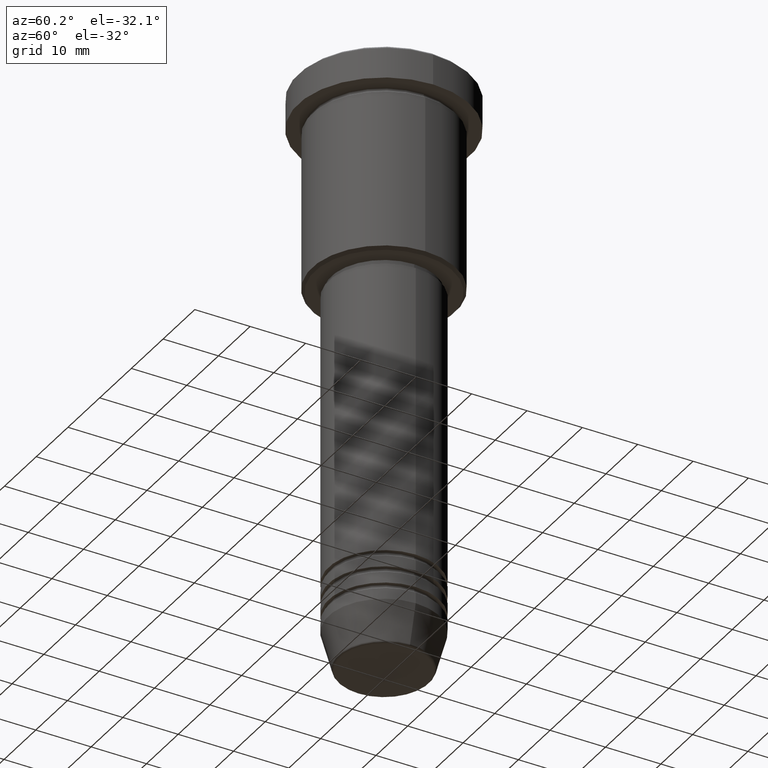
[diagram: clean part render]
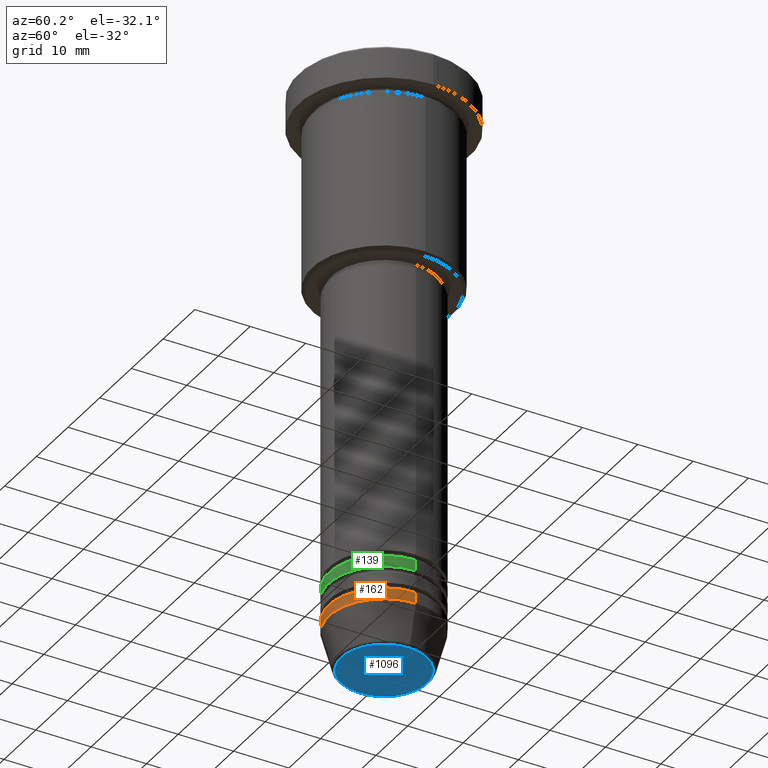
[diagram: same view with three faces highlighted in distinct colors, each labeled with its STEP entity id]
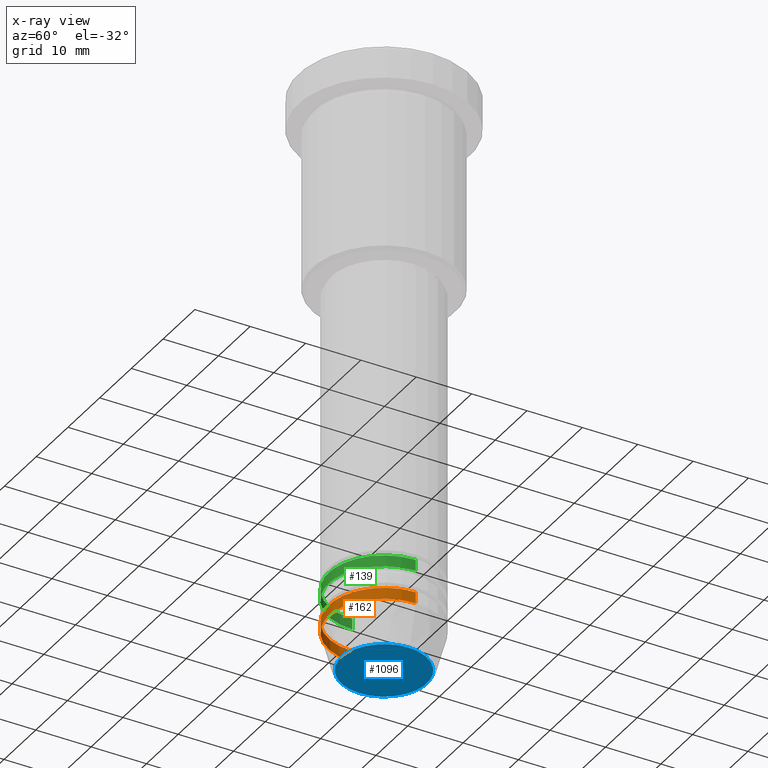
[diagram: x-ray of the same camera — body ghosted, the three highlighted faces saturated]
A machine part, auxiliary view with three faces highlighted in distinct colors.
The next image is the same camera in x-ray (body ghosted, the three faces saturated) — at least one of them is partly hidden behind the body in this view.
Their STEP definitions:

[orange] entity #162 — the highlighted cylindrical surface (partial cylindrical patch) has radius 10 mm, axis along (-0, -0, 1).
#4 = VERTEX_POINT ( 'NONE', #784 ) ;
#26 = AXIS2_PLACEMENT_3D ( 'NONE', #634, #157, #996 ) ;
#37 = LINE ( 'NONE', #405, #396 ) ;
#71 = CARTESIAN_POINT ( 'NONE',  ( 10.00000000000000000, 0.000000000000000000, -99.00000000000000000 ) ) ;
#124 = ORIENTED_EDGE ( 'NONE', *, *, #1069, .T. ) ;
#157 = DIRECTION ( 'NONE',  ( -0.000000000000000000, -0.000000000000000000, 1.000000000000000000 ) ) ;
#162 = ADVANCED_FACE ( 'NONE', ( #627 ), #791, .T. ) ;
#165 = ORIENTED_EDGE ( 'NONE', *, *, #327, .T. ) ;
#176 = AXIS2_PLACEMENT_3D ( 'NONE', #688, #1041, #956 ) ;
#177 = ORIENTED_EDGE ( 'NONE', *, *, #684, .F. ) ;
#199 = VECTOR ( 'NONE', #932, 1000.000000000000000 ) ;
#305 = VERTEX_POINT ( 'NONE', #375 ) ;
#313 = CIRCLE ( 'NONE', #26, 10.00000000000000000 ) ;
#321 = CARTESIAN_POINT ( 'NONE',  ( 0.000000000000000000, 0.000000000000000000, 0.000000000000000000 ) ) ;
#327 = EDGE_CURVE ( 'NONE', #628, #879, #313, .T. ) ;
#375 = CARTESIAN_POINT ( 'NONE',  ( -10.00000000000000000, 1.224646799147353256E-15, -97.00000000000000000 ) ) ;
#396 = VECTOR ( 'NONE', #1127, 1000.000000000000000 ) ;
#405 = CARTESIAN_POINT ( 'NONE',  ( -10.00000000000000000, 1.224646799147353256E-15, 0.000000000000000000 ) ) ;
#434 = AXIS2_PLACEMENT_3D ( 'NONE', #321, #983, #961 ) ;
#627 = FACE_OUTER_BOUND ( 'NONE', #839, .T. ) ;
#628 = VERTEX_POINT ( 'NONE', #965 ) ;
#634 = CARTESIAN_POINT ( 'NONE',  ( 0.000000000000000000, 0.000000000000000000, -99.00000000000000000 ) ) ;
#675 = LINE ( 'NONE', #1030, #199 ) ;
#684 = EDGE_CURVE ( 'NONE', #305, #4, #710, .T. ) ;
#688 = CARTESIAN_POINT ( 'NONE',  ( 0.000000000000000000, 0.000000000000000000, -97.00000000000000000 ) ) ;
#710 = CIRCLE ( 'NONE', #176, 10.00000000000000000 ) ;
#784 = CARTESIAN_POINT ( 'NONE',  ( 10.00000000000000000, 0.000000000000000000, -97.00000000000000000 ) ) ;
#791 = CYLINDRICAL_SURFACE ( 'NONE', #434, 10.00000000000000000 ) ;
#839 = EDGE_LOOP ( 'NONE', ( #911, #165, #124, #177 ) ) ;
#879 = VERTEX_POINT ( 'NONE', #71 ) ;
#911 = ORIENTED_EDGE ( 'NONE', *, *, #1138, .F. ) ;
#932 = DIRECTION ( 'NONE',  ( -0.000000000000000000, -0.000000000000000000, 1.000000000000000000 ) ) ;
#956 = DIRECTION ( 'NONE',  ( 1.000000000000000000, 0.000000000000000000, 0.000000000000000000 ) ) ;
#961 = DIRECTION ( 'NONE',  ( 1.000000000000000000, 0.000000000000000000, 0.000000000000000000 ) ) ;
#965 = CARTESIAN_POINT ( 'NONE',  ( -10.00000000000000000, 1.224646799147353256E-15, -99.00000000000000000 ) ) ;
#983 = DIRECTION ( 'NONE',  ( -0.000000000000000000, -0.000000000000000000, 1.000000000000000000 ) ) ;
#996 = DIRECTION ( 'NONE',  ( 1.000000000000000000, 0.000000000000000000, 0.000000000000000000 ) ) ;
#1030 = CARTESIAN_POINT ( 'NONE',  ( 10.00000000000000000, 0.000000000000000000, 0.000000000000000000 ) ) ;
#1041 = DIRECTION ( 'NONE',  ( -0.000000000000000000, -0.000000000000000000, 1.000000000000000000 ) ) ;
#1069 = EDGE_CURVE ( 'NONE', #879, #4, #675, .T. ) ;
#1127 = DIRECTION ( 'NONE',  ( -0.000000000000000000, -0.000000000000000000, 1.000000000000000000 ) ) ;
#1138 = EDGE_CURVE ( 'NONE', #628, #305, #37, .T. ) ;

[blue] entity #1096 — the highlighted planar face has unit normal (0, -0, 1).
#33 = DIRECTION ( 'NONE',  ( 1.000000000000000000, 0.000000000000000000, 0.000000000000000000 ) ) ;
#41 = DIRECTION ( 'NONE',  ( 0.000000000000000000, 0.000000000000000000, -1.000000000000000000 ) ) ;
#154 = EDGE_CURVE ( 'NONE', #241, #580, #195, .T. ) ;
#195 = CIRCLE ( 'NONE', #411, 7.740692158992658278 ) ;
#196 = AXIS2_PLACEMENT_3D ( 'NONE', #576, #762, #929 ) ;
#241 = VERTEX_POINT ( 'NONE', #873 ) ;
#273 = EDGE_LOOP ( 'NONE', ( #827, #1043 ) ) ;
#411 = AXIS2_PLACEMENT_3D ( 'NONE', #526, #41, #979 ) ;
#488 = EDGE_CURVE ( 'NONE', #580, #241, #792, .T. ) ;
#526 = CARTESIAN_POINT ( 'NONE',  ( 0.000000000000000000, 0.000000000000000000, -106.0000000000000000 ) ) ;
#576 = CARTESIAN_POINT ( 'NONE',  ( 0.000000000000000000, 0.000000000000000000, -106.0000000000000000 ) ) ;
#580 = VERTEX_POINT ( 'NONE', #1032 ) ;
#591 = AXIS2_PLACEMENT_3D ( 'NONE', #955, #958, #33 ) ;
#762 = DIRECTION ( 'NONE',  ( 0.000000000000000000, 0.000000000000000000, -1.000000000000000000 ) ) ;
#792 = CIRCLE ( 'NONE', #196, 7.740692158992658278 ) ;
#796 = FACE_OUTER_BOUND ( 'NONE', #273, .T. ) ;
#827 = ORIENTED_EDGE ( 'NONE', *, *, #154, .T. ) ;
#873 = CARTESIAN_POINT ( 'NONE',  ( 7.740692158992658278, 0.000000000000000000, -106.0000000000000000 ) ) ;
#929 = DIRECTION ( 'NONE',  ( 1.000000000000000000, 0.000000000000000000, 0.000000000000000000 ) ) ;
#955 = CARTESIAN_POINT ( 'NONE',  ( 0.000000000000000000, 0.000000000000000000, -106.0000000000000000 ) ) ;
#958 = DIRECTION ( 'NONE',  ( 0.000000000000000000, -0.000000000000000000, 1.000000000000000000 ) ) ;
#979 = DIRECTION ( 'NONE',  ( 1.000000000000000000, 0.000000000000000000, 0.000000000000000000 ) ) ;
#1032 = CARTESIAN_POINT ( 'NONE',  ( -7.740692158992658278, 9.775343368540041107E-16, -106.0000000000000000 ) ) ;
#1043 = ORIENTED_EDGE ( 'NONE', *, *, #488, .T. ) ;
#1096 = ADVANCED_FACE ( 'NONE', ( #796 ), #1145, .F. ) ;
#1145 = PLANE ( 'NONE',  #591 ) ;

[green] entity #139 — the highlighted cylindrical surface (partial cylindrical patch) has radius 10 mm, axis along (-0, -0, 1).
#5 = VERTEX_POINT ( 'NONE', #125 ) ;
#25 = EDGE_CURVE ( 'NONE', #44, #483, #63, .T. ) ;
#44 = VERTEX_POINT ( 'NONE', #596 ) ;
#47 = VECTOR ( 'NONE', #447, 1000.000000000000000 ) ;
#54 = CARTESIAN_POINT ( 'NONE',  ( 0.000000000000000000, 0.000000000000000000, -90.99999999999998579 ) ) ;
#63 = CIRCLE ( 'NONE', #752, 10.00000000000000000 ) ;
#81 = ORIENTED_EDGE ( 'NONE', *, *, #25, .T. ) ;
#112 = DIRECTION ( 'NONE',  ( 1.000000000000000000, 0.000000000000000000, 0.000000000000000000 ) ) ;
#125 = CARTESIAN_POINT ( 'NONE',  ( -10.00000000000000000, 1.224646799147353256E-15, -90.99999999999998579 ) ) ;
#139 = ADVANCED_FACE ( 'NONE', ( #893 ), #1137, .T. ) ;
#148 = VERTEX_POINT ( 'NONE', #245 ) ;
#152 = ORIENTED_EDGE ( 'NONE', *, *, #263, .F. ) ;
#155 = CARTESIAN_POINT ( 'NONE',  ( -10.00000000000000000, 1.224646799147353256E-15, 0.000000000000000000 ) ) ;
#232 = VECTOR ( 'NONE', #1153, 1000.000000000000000 ) ;
#245 = CARTESIAN_POINT ( 'NONE',  ( 10.00000000000000000, 0.000000000000000000, -90.99999999999998579 ) ) ;
#263 = EDGE_CURVE ( 'NONE', #5, #148, #1097, .T. ) ;
#404 = DIRECTION ( 'NONE',  ( -0.000000000000000000, -0.000000000000000000, 1.000000000000000000 ) ) ;
#418 = CARTESIAN_POINT ( 'NONE',  ( 0.000000000000000000, 0.000000000000000000, 0.000000000000000000 ) ) ;
#424 = DIRECTION ( 'NONE',  ( -0.000000000000000000, -0.000000000000000000, 1.000000000000000000 ) ) ;
#447 = DIRECTION ( 'NONE',  ( -0.000000000000000000, -0.000000000000000000, 1.000000000000000000 ) ) ;
#457 = ORIENTED_EDGE ( 'NONE', *, *, #615, .T. ) ;
#483 = VERTEX_POINT ( 'NONE', #682 ) ;
#596 = CARTESIAN_POINT ( 'NONE',  ( -10.00000000000000000, 1.224646799147353256E-15, -92.99999999999997158 ) ) ;
#601 = DIRECTION ( 'NONE',  ( 1.000000000000000000, 0.000000000000000000, 0.000000000000000000 ) ) ;
#607 = DIRECTION ( 'NONE',  ( -0.000000000000000000, -0.000000000000000000, 1.000000000000000000 ) ) ;
#609 = AXIS2_PLACEMENT_3D ( 'NONE', #54, #424, #601 ) ;
#615 = EDGE_CURVE ( 'NONE', #483, #148, #715, .T. ) ;
#650 = LINE ( 'NONE', #155, #47 ) ;
#682 = CARTESIAN_POINT ( 'NONE',  ( 10.00000000000000000, 0.000000000000000000, -92.99999999999997158 ) ) ;
#715 = LINE ( 'NONE', #1067, #232 ) ;
#752 = AXIS2_PLACEMENT_3D ( 'NONE', #1045, #404, #112 ) ;
#760 = EDGE_LOOP ( 'NONE', ( #1014, #81, #457, #152 ) ) ;
#853 = EDGE_CURVE ( 'NONE', #44, #5, #650, .T. ) ;
#888 = DIRECTION ( 'NONE',  ( 1.000000000000000000, 0.000000000000000000, 0.000000000000000000 ) ) ;
#893 = FACE_OUTER_BOUND ( 'NONE', #760, .T. ) ;
#931 = AXIS2_PLACEMENT_3D ( 'NONE', #418, #607, #888 ) ;
#1014 = ORIENTED_EDGE ( 'NONE', *, *, #853, .F. ) ;
#1045 = CARTESIAN_POINT ( 'NONE',  ( 0.000000000000000000, 0.000000000000000000, -92.99999999999997158 ) ) ;
#1067 = CARTESIAN_POINT ( 'NONE',  ( 10.00000000000000000, 0.000000000000000000, 0.000000000000000000 ) ) ;
#1097 = CIRCLE ( 'NONE', #609, 10.00000000000000000 ) ;
#1137 = CYLINDRICAL_SURFACE ( 'NONE', #931, 10.00000000000000000 ) ;
#1153 = DIRECTION ( 'NONE',  ( -0.000000000000000000, -0.000000000000000000, 1.000000000000000000 ) ) ;